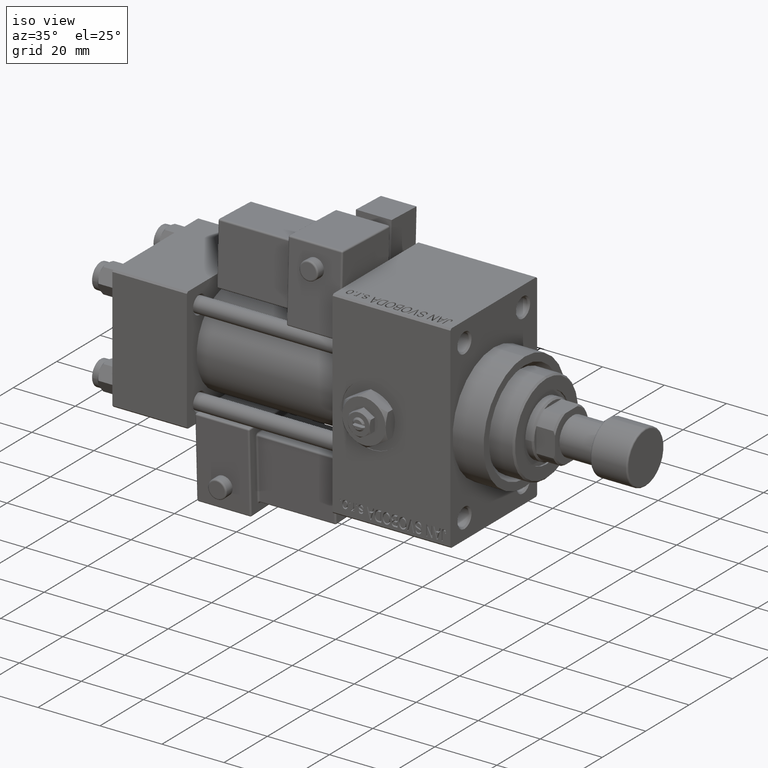
[diagram: clean part render]
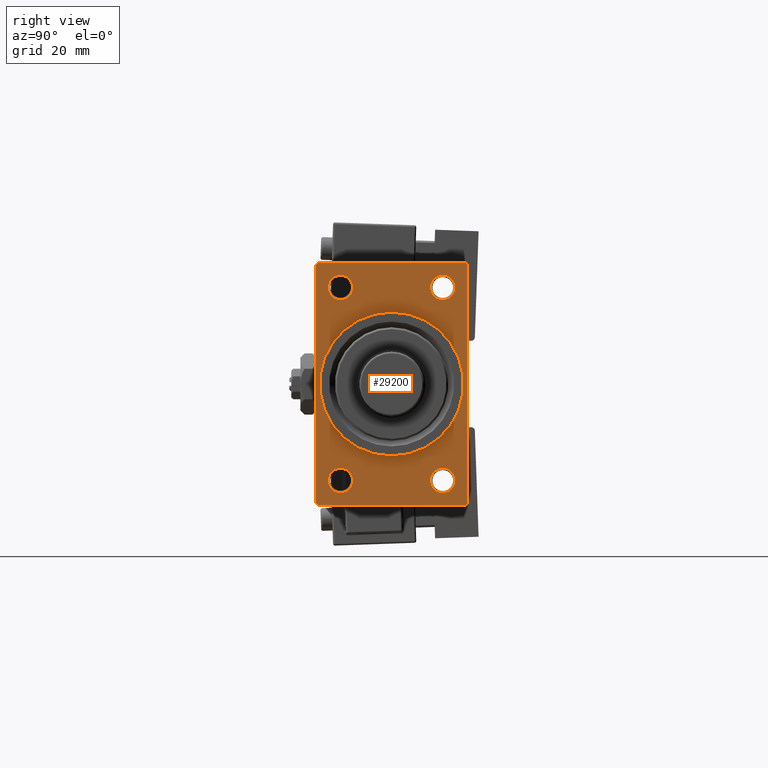
[diagram: tour spotlight — one face highlighted and labeled with its STEP entity id]
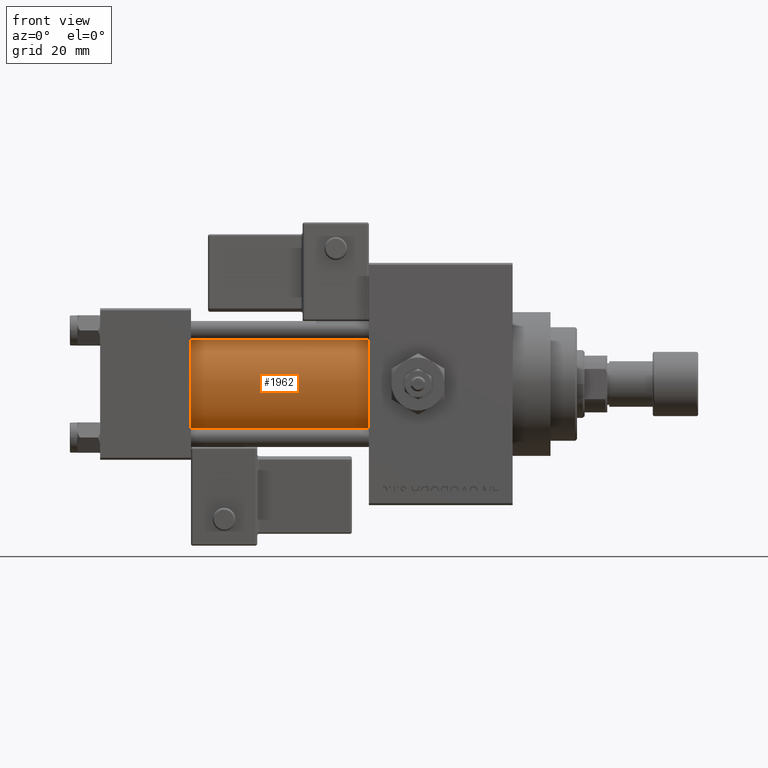
[diagram: tour spotlight — one face highlighted and labeled with its STEP entity id]
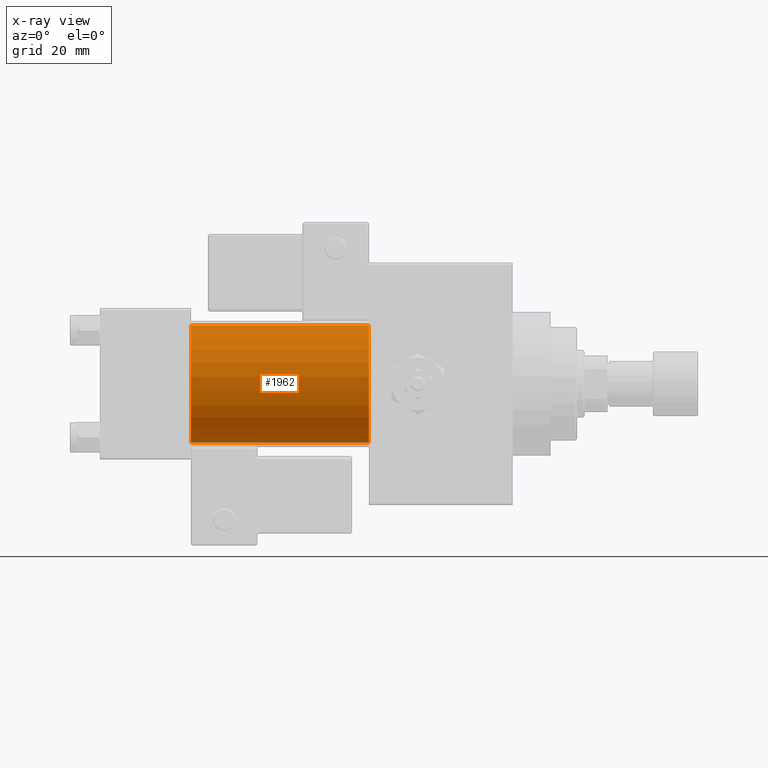
[diagram: x-ray of the same camera — body ghosted, this tour face saturated]
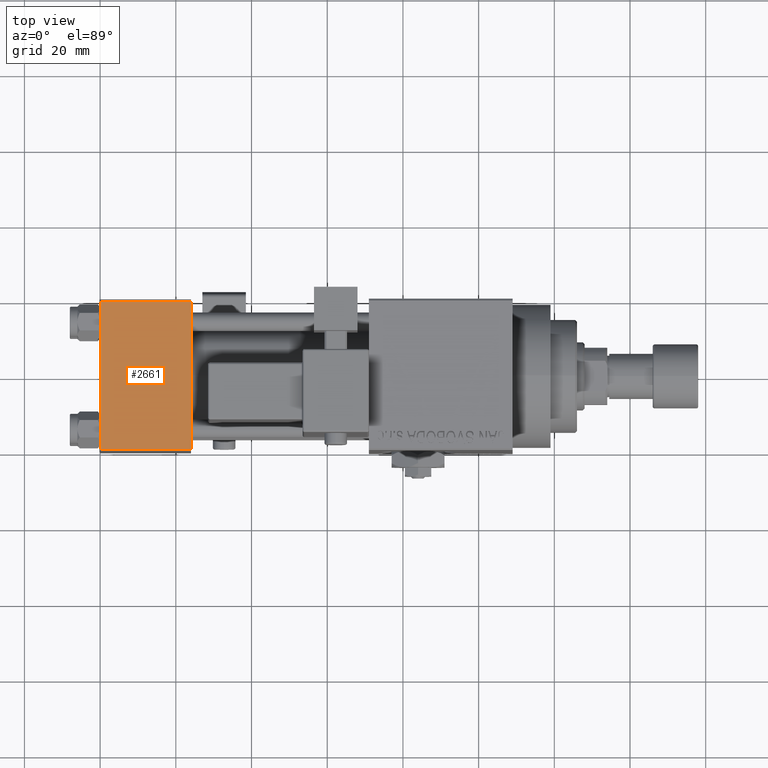
[diagram: tour spotlight — one face highlighted and labeled with its STEP entity id]
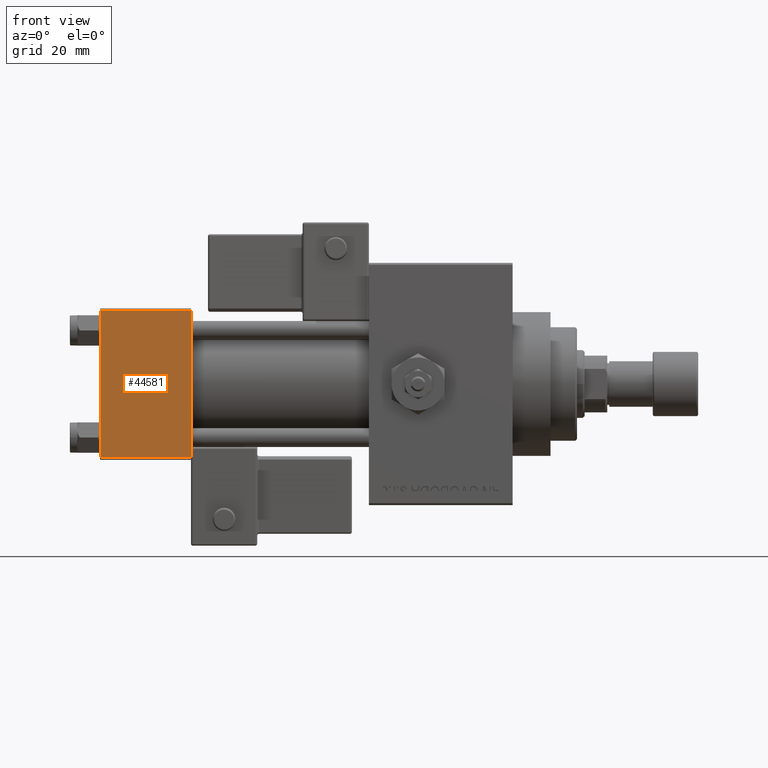
[diagram: tour spotlight — one face highlighted and labeled with its STEP entity id]
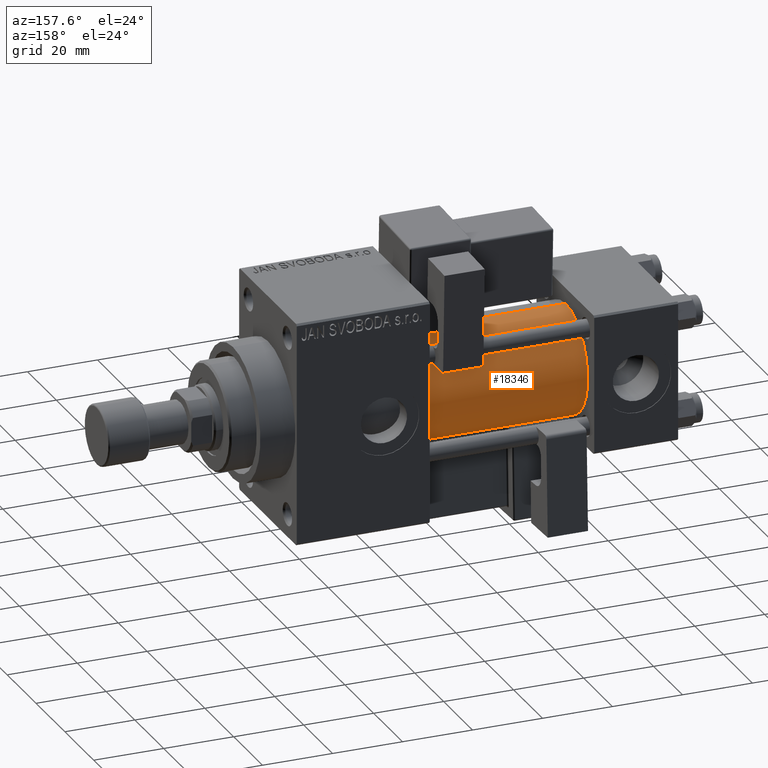
[diagram: tour spotlight — one face highlighted and labeled with its STEP entity id]
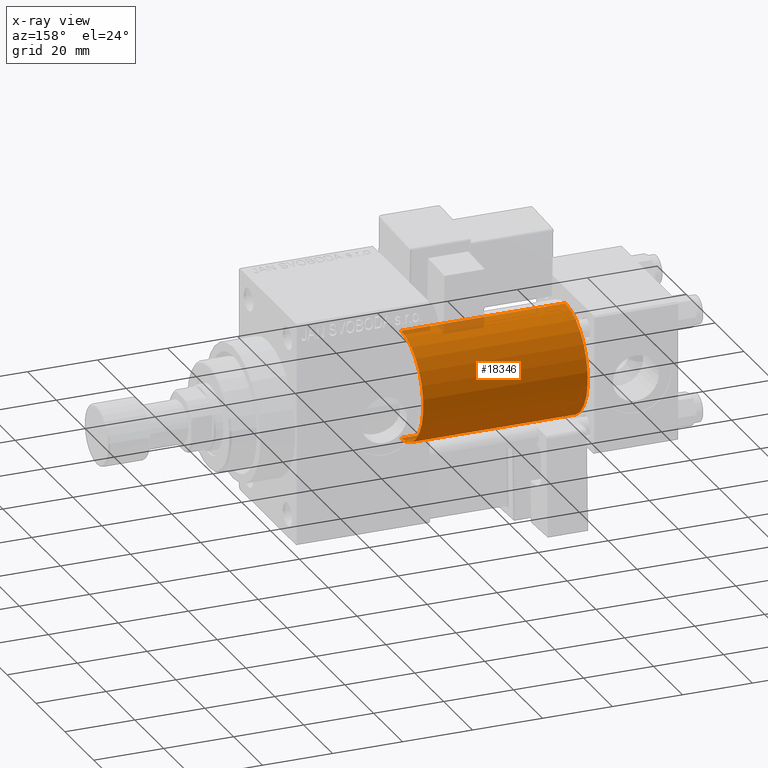
[diagram: x-ray of the same camera — body ghosted, this tour face saturated]
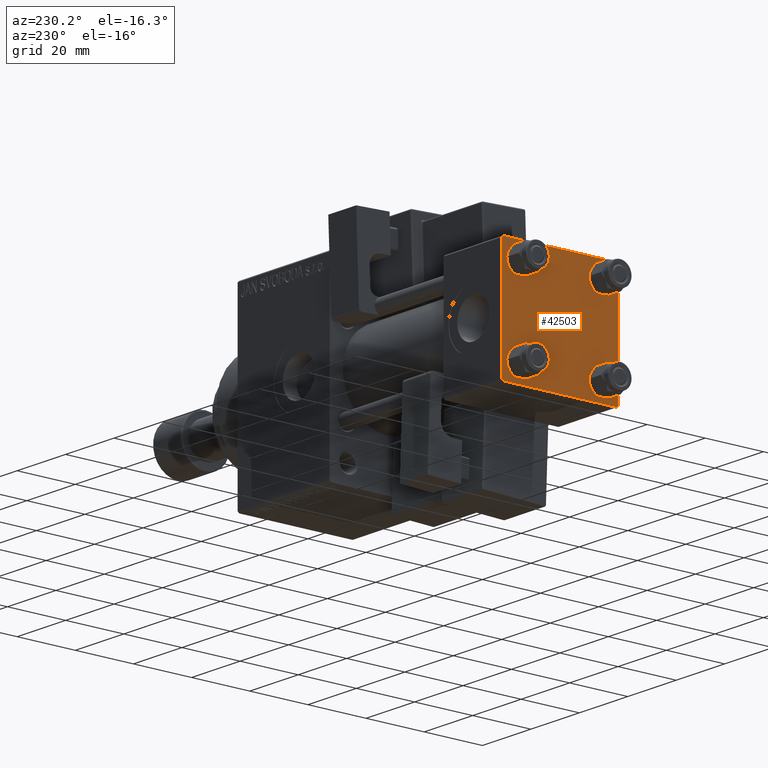
[diagram: tour spotlight — one face highlighted and labeled with its STEP entity id]
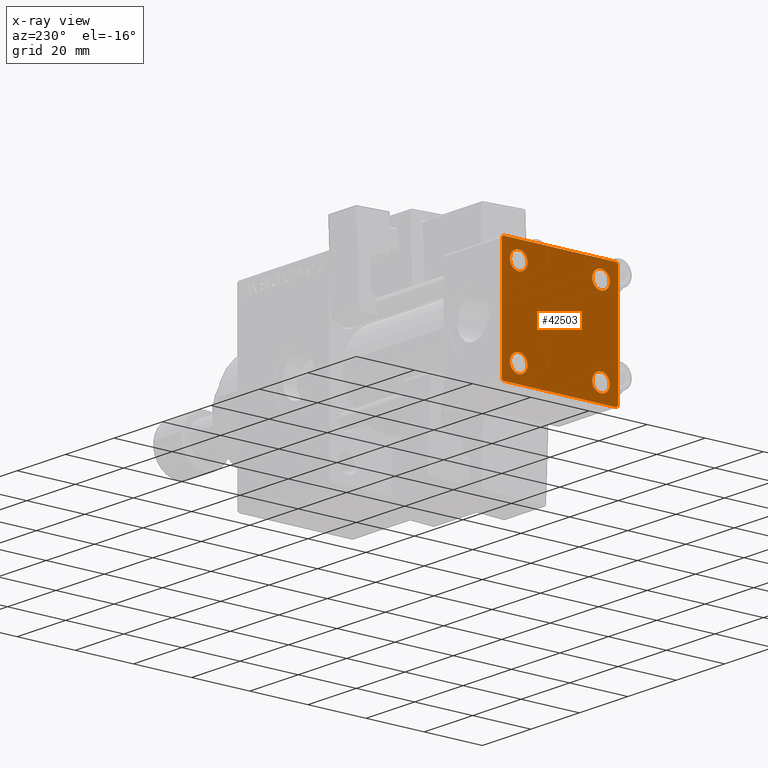
[diagram: x-ray of the same camera — body ghosted, this tour face saturated]
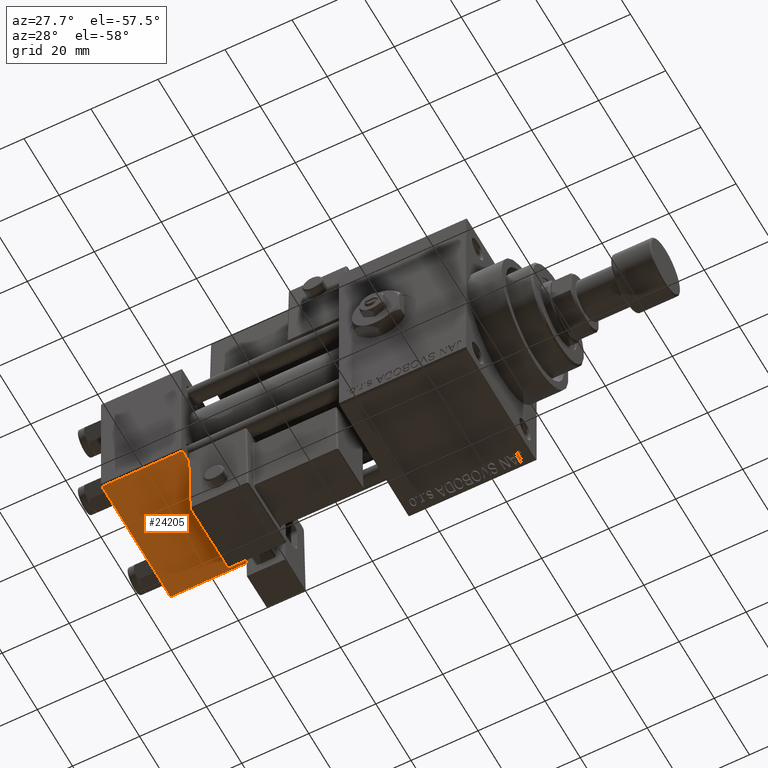
[diagram: tour spotlight — one face highlighted and labeled with its STEP entity id]
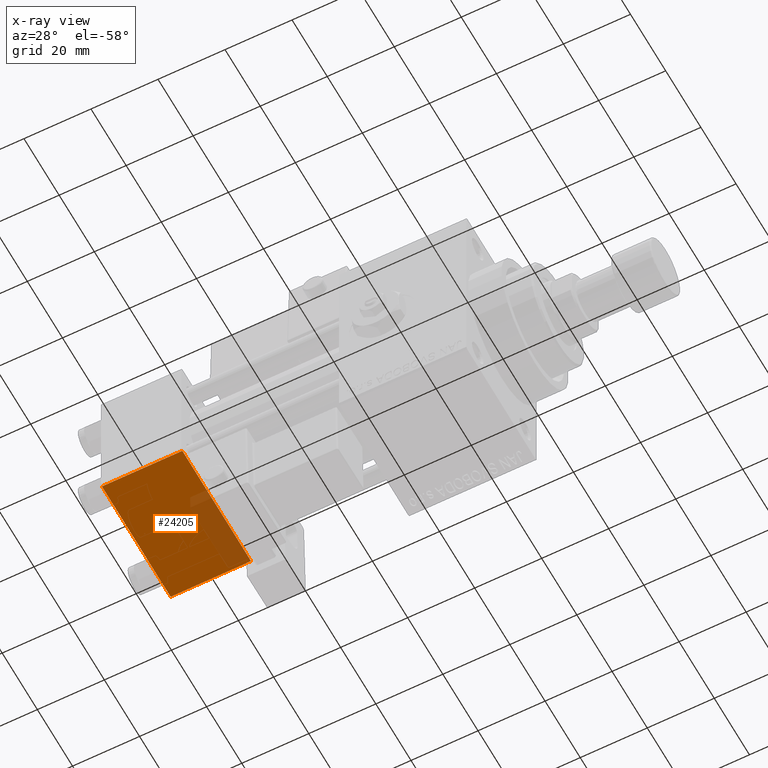
[diagram: x-ray of the same camera — body ghosted, this tour face saturated]
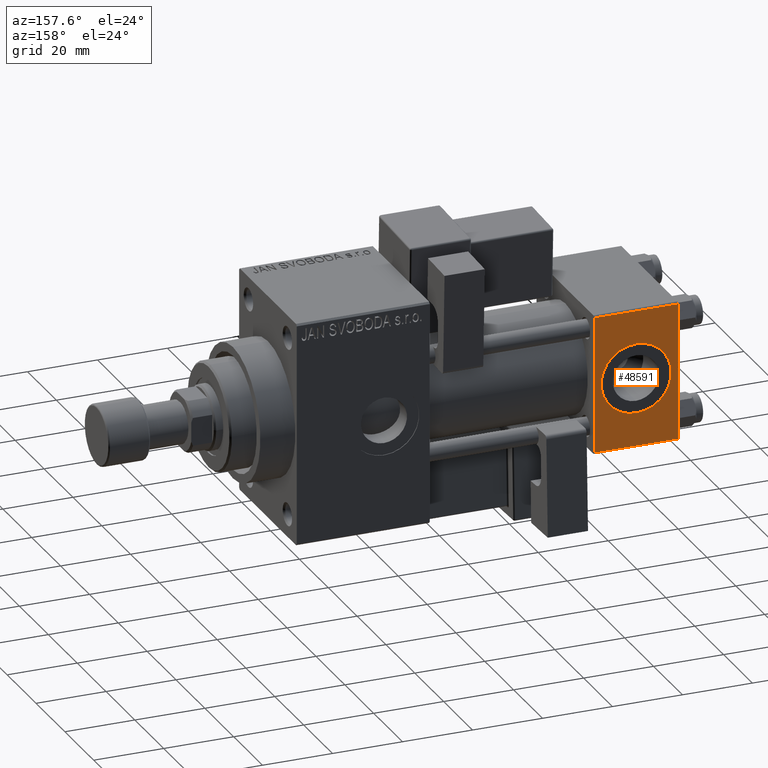
[diagram: tour spotlight — one face highlighted and labeled with its STEP entity id]
A machine part: a face-by-face anatomy tour. The part has 1321 B-rep faces; the first image is the clean iso view, then the 8 largest visible faces are spotlighted one at a time (largest first), each with its STEP entity span.

Face 1 — right view, entity #29200. In plain terms, the highlighted planar face has unit normal (-1, 0, 0).
Definition (entity closure, byte-faithful):
#488 = AXIS2_PLACEMENT_3D ( 'NONE', #33283, #12216, #29107 ) ;
#507 = CARTESIAN_POINT ( 'NONE',  ( 109.0000000000000142, 20.00000000000000000, -31.49999999999998579 ) ) ;
#1541 = CARTESIAN_POINT ( 'NONE',  ( 109.0000000000000142, -13.50000000000000533, -28.74999999999999645 ) ) ;
#2269 = CARTESIAN_POINT ( 'NONE',  ( 109.0000000000000142, 13.49999999999999822, -22.24999999999999645 ) ) ;
#2734 = VERTEX_POINT ( 'NONE', #35316 ) ;
#2962 = CARTESIAN_POINT ( 'NONE',  ( 109.0000000000000142, -19.49999999999998579, -32.00000000000000000 ) ) ;
#3020 = LINE ( 'NONE', #3275, #27060 ) ;
#3099 = CARTESIAN_POINT ( 'NONE',  ( 109.0000000000000142, 13.49999999999999822, 25.50000000000000355 ) ) ;
#3275 = CARTESIAN_POINT ( 'NONE',  ( 109.0000000000000142, 19.49999999999998579, 32.00000000000000000 ) ) ;
#3433 = VERTEX_POINT ( 'NONE', #42811 ) ;
#3513 = VERTEX_POINT ( 'NONE', #39654 ) ;
#3839 = AXIS2_PLACEMENT_3D ( 'NONE', #17788, #48774, #33668 ) ;
#3863 = EDGE_LOOP ( 'NONE', ( #49462, #15098 ) ) ;
#4605 = LINE ( 'NONE', #16320, #24214 ) ;
#4651 = CIRCLE ( 'NONE', #49540, 3.249999999999961364 ) ;
#4703 = CARTESIAN_POINT ( 'NONE',  ( 109.0000000000000142, -20.00000000000000000, 31.49999999999997868 ) ) ;
#5827 = EDGE_CURVE ( 'NONE', #48317, #15472, #7856, .T. ) ;
#6915 = DIRECTION ( 'NONE',  ( 1.000000000000000000, 0.000000000000000000, 0.000000000000000000 ) ) ;
#7503 = CARTESIAN_POINT ( 'NONE',  ( 109.0000000000000142, 20.00000000000000000, 32.00000000000000000 ) ) ;
#7856 = CIRCLE ( 'NONE', #36925, 3.250000000000002665 ) ;
#7922 = PLANE ( 'NONE',  #46087 ) ;
#8354 = DIRECTION ( 'NONE',  ( -0.000000000000000000, -0.7071067811865474617, -0.7071067811865474617 ) ) ;
#8701 = EDGE_CURVE ( 'NONE', #10807, #44010, #41213, .T. ) ;
#9239 = DIRECTION ( 'NONE',  ( 0.000000000000000000, 0.7071067811865426878, -0.7071067811865524577 ) ) ;
#9623 = CARTESIAN_POINT ( 'NONE',  ( 109.0000000000000142, 0.000000000000000000, 19.00000000000000000 ) ) ;
#9636 = VERTEX_POINT ( 'NONE', #507 ) ;
#10600 = DIRECTION ( 'NONE',  ( -1.000000000000000000, -0.000000000000000000, -0.000000000000000000 ) ) ;
#10726 = CARTESIAN_POINT ( 'NONE',  ( 109.0000000000000142, -13.50000000000000533, -22.24999999999999289 ) ) ;
#10780 = DIRECTION ( 'NONE',  ( -1.000000000000000000, -0.000000000000000000, -0.000000000000000000 ) ) ;
#10807 = VERTEX_POINT ( 'NONE', #10726 ) ;
#11138 = EDGE_CURVE ( 'NONE', #39530, #21258, #14741, .T. ) ;
#11431 = AXIS2_PLACEMENT_3D ( 'NONE', #35519, #6915, #34757 ) ;
#11766 = ORIENTED_EDGE ( 'NONE', *, *, #5827, .T. ) ;
#11941 = LINE ( 'NONE', #32741, #17497 ) ;
#12216 = DIRECTION ( 'NONE',  ( -1.000000000000000000, -0.000000000000000000, -0.000000000000000000 ) ) ;
#13093 = CARTESIAN_POINT ( 'NONE',  ( 109.0000000000000142, 20.00000000000000000, -32.00000000000000000 ) ) ;
#13793 = CIRCLE ( 'NONE', #3839, 3.250000000000002665 ) ;
#14318 = ORIENTED_EDGE ( 'NONE', *, *, #36378, .F. ) ;
#14741 = CIRCLE ( 'NONE', #11431, 19.00000000000000000 ) ;
#14976 = CARTESIAN_POINT ( 'NONE',  ( 109.0000000000000142, 0.000000000000000000, 0.000000000000000000 ) ) ;
#15098 = ORIENTED_EDGE ( 'NONE', *, *, #11138, .F. ) ;
#15291 = DIRECTION ( 'NONE',  ( 0.000000000000000000, 0.000000000000000000, -1.000000000000000000 ) ) ;
#15396 = DIRECTION ( 'NONE',  ( 0.000000000000000000, 0.000000000000000000, 1.000000000000000000 ) ) ;
#15472 = VERTEX_POINT ( 'NONE', #27112 ) ;
#15486 = FACE_BOUND ( 'NONE', #36143, .T. ) ;
#16200 = CARTESIAN_POINT ( 'NONE',  ( 109.0000000000000142, -19.49999999999998579, 31.99999999999999289 ) ) ;
#16279 = AXIS2_PLACEMENT_3D ( 'NONE', #3099, #49691, #49946 ) ;
#16320 = CARTESIAN_POINT ( 'NONE',  ( 109.0000000000000142, 20.00000000000000000, 32.00000000000000000 ) ) ;
#16525 = CARTESIAN_POINT ( 'NONE',  ( 109.0000000000000142, -19.49999999999998579, -32.00000000000000000 ) ) ;
#16782 = EDGE_CURVE ( 'NONE', #21687, #9636, #11941, .T. ) ;
#16885 = CARTESIAN_POINT ( 'NONE',  ( 109.0000000000000142, -20.00000000000000000, 31.99999999999999289 ) ) ;
#16985 = CARTESIAN_POINT ( 'NONE',  ( 109.0000000000000142, -13.50000000000000178, 28.75000000000000355 ) ) ;
#17230 = ORIENTED_EDGE ( 'NONE', *, *, #16782, .T. ) ;
#17497 = VECTOR ( 'NONE', #21038, 1000.000000000000114 ) ;
#17639 = CARTESIAN_POINT ( 'NONE',  ( 109.0000000000000142, -13.50000000000000533, -25.49999999999999645 ) ) ;
#17788 = CARTESIAN_POINT ( 'NONE',  ( 109.0000000000000142, 13.49999999999999822, -25.50000000000000000 ) ) ;
#17807 = CIRCLE ( 'NONE', #39427, 3.250000000000002665 ) ;
#18046 = ORIENTED_EDGE ( 'NONE', *, *, #22925, .T. ) ;
#18588 = EDGE_CURVE ( 'NONE', #41860, #46123, #4605, .T. ) ;
#19897 = FACE_BOUND ( 'NONE', #43522, .T. ) ;
#20312 = ORIENTED_EDGE ( 'NONE', *, *, #43260, .T. ) ;
#20426 = ORIENTED_EDGE ( 'NONE', *, *, #43823, .T. ) ;
#20558 = LINE ( 'NONE', #16885, #27964 ) ;
#21038 = DIRECTION ( 'NONE',  ( -0.000000000000000000, 0.7071067811865474617, 0.7071067811865474617 ) ) ;
#21258 = VERTEX_POINT ( 'NONE', #9623 ) ;
#21501 = CARTESIAN_POINT ( 'NONE',  ( 109.0000000000000142, 19.49999999999998579, 32.00000000000000000 ) ) ;
#21687 = VERTEX_POINT ( 'NONE', #30556 ) ;
#22326 = DIRECTION ( 'NONE',  ( 0.000000000000000000, 0.000000000000000000, 1.000000000000000000 ) ) ;
#22925 = EDGE_CURVE ( 'NONE', #15472, #48317, #45154, .T. ) ;
#23163 = CARTESIAN_POINT ( 'NONE',  ( 109.0000000000000142, 2.326828918379970970E-15, -19.00000000000000000 ) ) ;
#23201 = CARTESIAN_POINT ( 'NONE',  ( 109.0000000000000142, 20.00000000000000000, 31.49999999999998579 ) ) ;
#23953 = ORIENTED_EDGE ( 'NONE', *, *, #44108, .T. ) ;
#24095 = EDGE_CURVE ( 'NONE', #3513, #45054, #50090, .T. ) ;
#24214 = VECTOR ( 'NONE', #36609, 1000.000000000000000 ) ;
#24542 = EDGE_CURVE ( 'NONE', #21258, #39530, #49256, .T. ) ;
#25208 = AXIS2_PLACEMENT_3D ( 'NONE', #51047, #31528, #15396 ) ;
#25384 = VECTOR ( 'NONE', #15291, 1000.000000000000000 ) ;
#25447 = VERTEX_POINT ( 'NONE', #23201 ) ;
#26386 = DIRECTION ( 'NONE',  ( 0.000000000000000000, 0.000000000000000000, 1.000000000000000000 ) ) ;
#26422 = ORIENTED_EDGE ( 'NONE', *, *, #24095, .T. ) ;
#27060 = VECTOR ( 'NONE', #34767, 1000.000000000000114 ) ;
#27112 = CARTESIAN_POINT ( 'NONE',  ( 109.0000000000000142, -13.50000000000000178, 22.25000000000000000 ) ) ;
#27643 = VERTEX_POINT ( 'NONE', #2962 ) ;
#27964 = VECTOR ( 'NONE', #40324, 1000.000000000000000 ) ;
#29107 = DIRECTION ( 'NONE',  ( 0.000000000000000000, 0.000000000000000000, 1.000000000000000000 ) ) ;
#29200 = ADVANCED_FACE ( 'NONE', ( #15486, #51133, #39165, #19897, #35766, #38918 ), #7922, .F. ) ;
#30354 = CARTESIAN_POINT ( 'NONE',  ( 109.0000000000000142, -13.50000000000000178, 25.50000000000000355 ) ) ;
#30556 = CARTESIAN_POINT ( 'NONE',  ( 109.0000000000000142, 19.49999999999998579, -32.00000000000000000 ) ) ;
#30726 = DIRECTION ( 'NONE',  ( 0.000000000000000000, 0.000000000000000000, 1.000000000000000000 ) ) ;
#30742 = VERTEX_POINT ( 'NONE', #43274 ) ;
#30978 = CARTESIAN_POINT ( 'NONE',  ( 109.0000000000000142, 13.49999999999999822, 25.50000000000000355 ) ) ;
#31246 = DIRECTION ( 'NONE',  ( 1.000000000000000000, 0.000000000000000000, 0.000000000000000000 ) ) ;
#31356 = DIRECTION ( 'NONE',  ( -0.000000000000000000, 0.000000000000000000, 1.000000000000000000 ) ) ;
#31528 = DIRECTION ( 'NONE',  ( -1.000000000000000000, -0.000000000000000000, -0.000000000000000000 ) ) ;
#32031 = LINE ( 'NONE', #4703, #51331 ) ;
#32070 = EDGE_LOOP ( 'NONE', ( #43772, #45005 ) ) ;
#32102 = CIRCLE ( 'NONE', #16279, 3.249999999999961364 ) ;
#32207 = CARTESIAN_POINT ( 'NONE',  ( 109.0000000000000142, 0.000000000000000000, 0.000000000000000000 ) ) ;
#32457 = DIRECTION ( 'NONE',  ( 0.000000000000000000, 0.000000000000000000, -1.000000000000000000 ) ) ;
#32741 = CARTESIAN_POINT ( 'NONE',  ( 109.0000000000000142, 20.00000000000000000, -31.49999999999998579 ) ) ;
#33283 = CARTESIAN_POINT ( 'NONE',  ( 109.0000000000000142, -13.50000000000000533, -25.49999999999999645 ) ) ;
#33668 = DIRECTION ( 'NONE',  ( 0.000000000000000000, 0.000000000000000000, 1.000000000000000000 ) ) ;
#34757 = DIRECTION ( 'NONE',  ( 0.000000000000000000, 0.000000000000000000, -1.000000000000000000 ) ) ;
#34767 = DIRECTION ( 'NONE',  ( 0.000000000000000000, -0.7071067811865474617, 0.7071067811865474617 ) ) ;
#35316 = CARTESIAN_POINT ( 'NONE',  ( 109.0000000000000142, 13.49999999999999822, 22.25000000000004263 ) ) ;
#35466 = VECTOR ( 'NONE', #44321, 1000.000000000000000 ) ;
#35519 = CARTESIAN_POINT ( 'NONE',  ( 109.0000000000000142, 0.000000000000000000, 0.000000000000000000 ) ) ;
#35587 = LINE ( 'NONE', #7503, #25384 ) ;
#35766 = FACE_BOUND ( 'NONE', #3863, .T. ) ;
#35948 = EDGE_CURVE ( 'NONE', #46123, #51121, #32031, .T. ) ;
#36143 = EDGE_LOOP ( 'NONE', ( #18046, #11766 ) ) ;
#36287 = ORIENTED_EDGE ( 'NONE', *, *, #43438, .T. ) ;
#36378 = EDGE_CURVE ( 'NONE', #21687, #27643, #44071, .T. ) ;
#36577 = ORIENTED_EDGE ( 'NONE', *, *, #35948, .T. ) ;
#36609 = DIRECTION ( 'NONE',  ( 0.000000000000000000, -1.000000000000000000, -1.734723475976807094E-16 ) ) ;
#36925 = AXIS2_PLACEMENT_3D ( 'NONE', #30354, #10600, #42350 ) ;
#38765 = CARTESIAN_POINT ( 'NONE',  ( 109.0000000000000142, -20.00000000000000000, 31.49999999999997868 ) ) ;
#38843 = ORIENTED_EDGE ( 'NONE', *, *, #41686, .F. ) ;
#38918 = FACE_OUTER_BOUND ( 'NONE', #50753, .T. ) ;
#39165 = FACE_BOUND ( 'NONE', #43181, .T. ) ;
#39427 = AXIS2_PLACEMENT_3D ( 'NONE', #17639, #42112, #22326 ) ;
#39530 = VERTEX_POINT ( 'NONE', #23163 ) ;
#39654 = CARTESIAN_POINT ( 'NONE',  ( 109.0000000000000142, 13.49999999999999822, -28.75000000000000000 ) ) ;
#40103 = AXIS2_PLACEMENT_3D ( 'NONE', #32207, #31246, #32457 ) ;
#40324 = DIRECTION ( 'NONE',  ( 0.000000000000000000, 0.000000000000000000, -1.000000000000000000 ) ) ;
#40602 = EDGE_CURVE ( 'NONE', #44010, #10807, #17807, .T. ) ;
#40921 = AXIS2_PLACEMENT_3D ( 'NONE', #49826, #10780, #26386 ) ;
#41213 = CIRCLE ( 'NONE', #488, 3.250000000000002665 ) ;
#41686 = EDGE_CURVE ( 'NONE', #25447, #9636, #35587, .T. ) ;
#41860 = VERTEX_POINT ( 'NONE', #21501 ) ;
#42112 = DIRECTION ( 'NONE',  ( -1.000000000000000000, -0.000000000000000000, -0.000000000000000000 ) ) ;
#42350 = DIRECTION ( 'NONE',  ( 0.000000000000000000, 0.000000000000000000, 1.000000000000000000 ) ) ;
#42811 = CARTESIAN_POINT ( 'NONE',  ( 109.0000000000000142, -20.00000000000000000, -31.49999999999997868 ) ) ;
#43181 = EDGE_LOOP ( 'NONE', ( #26422, #36287 ) ) ;
#43260 = EDGE_CURVE ( 'NONE', #25447, #41860, #3020, .T. ) ;
#43274 = CARTESIAN_POINT ( 'NONE',  ( 109.0000000000000142, 13.49999999999999822, 28.74999999999996803 ) ) ;
#43438 = EDGE_CURVE ( 'NONE', #45054, #3513, #13793, .T. ) ;
#43522 = EDGE_LOOP ( 'NONE', ( #23953, #20426 ) ) ;
#43772 = ORIENTED_EDGE ( 'NONE', *, *, #40602, .T. ) ;
#43823 = EDGE_CURVE ( 'NONE', #30742, #2734, #4651, .T. ) ;
#44010 = VERTEX_POINT ( 'NONE', #1541 ) ;
#44071 = LINE ( 'NONE', #13093, #35466 ) ;
#44108 = EDGE_CURVE ( 'NONE', #2734, #30742, #32102, .T. ) ;
#44321 = DIRECTION ( 'NONE',  ( 0.000000000000000000, -1.000000000000000000, 0.000000000000000000 ) ) ;
#44356 = ORIENTED_EDGE ( 'NONE', *, *, #45170, .T. ) ;
#44887 = LINE ( 'NONE', #16525, #47934 ) ;
#45005 = ORIENTED_EDGE ( 'NONE', *, *, #8701, .T. ) ;
#45054 = VERTEX_POINT ( 'NONE', #2269 ) ;
#45154 = CIRCLE ( 'NONE', #25208, 3.250000000000002665 ) ;
#45170 = EDGE_CURVE ( 'NONE', #3433, #27643, #44887, .T. ) ;
#46079 = DIRECTION ( 'NONE',  ( -1.000000000000000000, -0.000000000000000000, -0.000000000000000000 ) ) ;
#46087 = AXIS2_PLACEMENT_3D ( 'NONE', #14976, #50879, #31356 ) ;
#46123 = VERTEX_POINT ( 'NONE', #16200 ) ;
#47934 = VECTOR ( 'NONE', #9239, 1000.000000000000000 ) ;
#48317 = VERTEX_POINT ( 'NONE', #16985 ) ;
#48430 = ORIENTED_EDGE ( 'NONE', *, *, #49059, .T. ) ;
#48774 = DIRECTION ( 'NONE',  ( -1.000000000000000000, -0.000000000000000000, -0.000000000000000000 ) ) ;
#49059 = EDGE_CURVE ( 'NONE', #51121, #3433, #20558, .T. ) ;
#49256 = CIRCLE ( 'NONE', #40103, 19.00000000000000000 ) ;
#49462 = ORIENTED_EDGE ( 'NONE', *, *, #24542, .F. ) ;
#49540 = AXIS2_PLACEMENT_3D ( 'NONE', #30978, #46079, #30726 ) ;
#49691 = DIRECTION ( 'NONE',  ( -1.000000000000000000, -0.000000000000000000, -0.000000000000000000 ) ) ;
#49826 = CARTESIAN_POINT ( 'NONE',  ( 109.0000000000000142, 13.49999999999999822, -25.50000000000000000 ) ) ;
#49946 = DIRECTION ( 'NONE',  ( 0.000000000000000000, 0.000000000000000000, 1.000000000000000000 ) ) ;
#50090 = CIRCLE ( 'NONE', #40921, 3.250000000000002665 ) ;
#50753 = EDGE_LOOP ( 'NONE', ( #48430, #44356, #14318, #17230, #38843, #20312, #51125, #36577 ) ) ;
#50879 = DIRECTION ( 'NONE',  ( -1.000000000000000000, 0.000000000000000000, -0.000000000000000000 ) ) ;
#51047 = CARTESIAN_POINT ( 'NONE',  ( 109.0000000000000142, -13.50000000000000178, 25.50000000000000355 ) ) ;
#51121 = VERTEX_POINT ( 'NONE', #38765 ) ;
#51125 = ORIENTED_EDGE ( 'NONE', *, *, #18588, .T. ) ;
#51133 = FACE_BOUND ( 'NONE', #32070, .T. ) ;
#51331 = VECTOR ( 'NONE', #8354, 1000.000000000000114 ) ;

Face 2 — front view, entity #1962. An x-ray twin of the same camera follows (body ghosted, this face saturated) — the face is partly hidden behind the body. In plain terms, the highlighted cylindrical surface (partial cylindrical patch) has radius 15.5 mm, axis along (-1, -0, -0).
Definition (entity closure, byte-faithful):
#1955 = LINE ( 'NONE', #17826, #27922 ) ;
#1962 = ADVANCED_FACE ( 'NONE', ( #5086 ), #25376, .T. ) ;
#5086 = FACE_OUTER_BOUND ( 'NONE', #45490, .T. ) ;
#5541 = CARTESIAN_POINT ( 'NONE',  ( 71.00000000000001421, -7.038826752868131828E-16, -15.50000000000000000 ) ) ;
#6218 = VERTEX_POINT ( 'NONE', #5541 ) ;
#6246 = EDGE_CURVE ( 'NONE', #9262, #6218, #14548, .T. ) ;
#6293 = CARTESIAN_POINT ( 'NONE',  ( 24.00000000000000000, -2.602085213965210642E-15, 15.50000000000000000 ) ) ;
#6667 = ORIENTED_EDGE ( 'NONE', *, *, #48009, .F. ) ;
#8637 = CIRCLE ( 'NONE', #29440, 15.50000000000000000 ) ;
#9251 = CARTESIAN_POINT ( 'NONE',  ( 71.00000000000001421, -2.602085213965210642E-15, 0.000000000000000000 ) ) ;
#9262 = VERTEX_POINT ( 'NONE', #27458 ) ;
#11035 = VECTOR ( 'NONE', #19041, 1000.000000000000000 ) ;
#14372 = DIRECTION ( 'NONE',  ( -1.000000000000000000, -0.000000000000000000, -0.000000000000000000 ) ) ;
#14548 = CIRCLE ( 'NONE', #24526, 15.50000000000000000 ) ;
#17793 = CARTESIAN_POINT ( 'NONE',  ( 24.00000000000000000, -2.602085213965210642E-15, 0.000000000000000000 ) ) ;
#17826 = CARTESIAN_POINT ( 'NONE',  ( 71.00000000000001421, -7.038826752868131828E-16, -15.50000000000000000 ) ) ;
#18035 = ORIENTED_EDGE ( 'NONE', *, *, #24492, .T. ) ;
#18148 = VERTEX_POINT ( 'NONE', #6293 ) ;
#19041 = DIRECTION ( 'NONE',  ( -1.000000000000000000, -0.000000000000000000, -0.000000000000000000 ) ) ;
#20091 = ORIENTED_EDGE ( 'NONE', *, *, #27709, .T. ) ;
#24492 = EDGE_CURVE ( 'NONE', #9262, #18148, #38046, .T. ) ;
#24526 = AXIS2_PLACEMENT_3D ( 'NONE', #40144, #49250, #48995 ) ;
#25376 = CYLINDRICAL_SURFACE ( 'NONE', #34426, 15.50000000000000000 ) ;
#25811 = CARTESIAN_POINT ( 'NONE',  ( 71.00000000000001421, -2.602085213965210642E-15, 15.50000000000000000 ) ) ;
#27458 = CARTESIAN_POINT ( 'NONE',  ( 71.00000000000001421, -2.602085213965210642E-15, 15.50000000000000000 ) ) ;
#27709 = EDGE_CURVE ( 'NONE', #18148, #30563, #8637, .T. ) ;
#27922 = VECTOR ( 'NONE', #30303, 1000.000000000000000 ) ;
#29267 = DIRECTION ( 'NONE',  ( 0.000000000000000000, 0.000000000000000000, 1.000000000000000000 ) ) ;
#29440 = AXIS2_PLACEMENT_3D ( 'NONE', #17793, #45639, #30537 ) ;
#29662 = ORIENTED_EDGE ( 'NONE', *, *, #6246, .F. ) ;
#30303 = DIRECTION ( 'NONE',  ( -1.000000000000000000, -0.000000000000000000, -0.000000000000000000 ) ) ;
#30537 = DIRECTION ( 'NONE',  ( 0.000000000000000000, 0.000000000000000000, 1.000000000000000000 ) ) ;
#30563 = VERTEX_POINT ( 'NONE', #44088 ) ;
#34426 = AXIS2_PLACEMENT_3D ( 'NONE', #9251, #14372, #29267 ) ;
#38046 = LINE ( 'NONE', #25811, #11035 ) ;
#40144 = CARTESIAN_POINT ( 'NONE',  ( 71.00000000000001421, -2.602085213965210642E-15, 0.000000000000000000 ) ) ;
#44088 = CARTESIAN_POINT ( 'NONE',  ( 24.00000000000000000, -7.038826752868131828E-16, -15.50000000000000000 ) ) ;
#45490 = EDGE_LOOP ( 'NONE', ( #6667, #29662, #18035, #20091 ) ) ;
#45639 = DIRECTION ( 'NONE',  ( 1.000000000000000000, 0.000000000000000000, 0.000000000000000000 ) ) ;
#48009 = EDGE_CURVE ( 'NONE', #6218, #30563, #1955, .T. ) ;
#48995 = DIRECTION ( 'NONE',  ( 0.000000000000000000, 0.000000000000000000, -1.000000000000000000 ) ) ;
#49250 = DIRECTION ( 'NONE',  ( 1.000000000000000000, 0.000000000000000000, 0.000000000000000000 ) ) ;

Face 3 — top view, entity #2661. In plain terms, the highlighted planar face has unit normal (0, 0, -1).
Definition (entity closure, byte-faithful):
#305 = VECTOR ( 'NONE', #45177, 1000.000000000000000 ) ;
#2051 = CARTESIAN_POINT ( 'NONE',  ( 24.00000000000000000, 20.00000000000000000, 20.00000000000000000 ) ) ;
#2661 = ADVANCED_FACE ( 'NONE', ( #15028 ), #38967, .F. ) ;
#3563 = DIRECTION ( 'NONE',  ( 0.000000000000000000, 1.000000000000000000, 2.602085213965210149E-16 ) ) ;
#5965 = DIRECTION ( 'NONE',  ( 0.000000000000000000, -1.000000000000000000, -2.602085213965210149E-16 ) ) ;
#6586 = CARTESIAN_POINT ( 'NONE',  ( 0.000000000000000000, 19.50000000000000000, 20.00000000000000000 ) ) ;
#7075 = DIRECTION ( 'NONE',  ( 1.000000000000000000, 0.000000000000000000, 0.000000000000000000 ) ) ;
#11121 = DIRECTION ( 'NONE',  ( 0.000000000000000000, 2.602085213965210149E-16, -1.000000000000000000 ) ) ;
#11209 = CARTESIAN_POINT ( 'NONE',  ( 0.000000000000000000, 19.50000000000000000, 20.00000000000000000 ) ) ;
#12203 = CARTESIAN_POINT ( 'NONE',  ( 0.000000000000000000, -19.49999999999999289, 19.99999999999998934 ) ) ;
#12921 = CARTESIAN_POINT ( 'NONE',  ( 0.000000000000000000, 20.00000000000000000, 20.00000000000000000 ) ) ;
#13492 = ORIENTED_EDGE ( 'NONE', *, *, #44015, .F. ) ;
#15028 = FACE_OUTER_BOUND ( 'NONE', #17229, .T. ) ;
#17229 = EDGE_LOOP ( 'NONE', ( #34751, #42061, #13492, #17590 ) ) ;
#17411 = LINE ( 'NONE', #2051, #50404 ) ;
#17590 = ORIENTED_EDGE ( 'NONE', *, *, #35667, .T. ) ;
#18675 = CARTESIAN_POINT ( 'NONE',  ( 24.00000000000000000, 20.00000000000000000, 20.00000000000000000 ) ) ;
#19323 = VECTOR ( 'NONE', #7075, 1000.000000000000000 ) ;
#20920 = EDGE_CURVE ( 'NONE', #39527, #28370, #23192, .T. ) ;
#21375 = CARTESIAN_POINT ( 'NONE',  ( 24.00000000000000000, 19.50000000000000000, 20.00000000000000000 ) ) ;
#22295 = CARTESIAN_POINT ( 'NONE',  ( 24.00000000000000000, -19.49999999999999289, 19.99999999999998934 ) ) ;
#23192 = LINE ( 'NONE', #39070, #19323 ) ;
#23328 = VERTEX_POINT ( 'NONE', #11209 ) ;
#27314 = EDGE_CURVE ( 'NONE', #23328, #39527, #29301, .T. ) ;
#28370 = VERTEX_POINT ( 'NONE', #22295 ) ;
#29301 = LINE ( 'NONE', #12921, #305 ) ;
#29985 = DIRECTION ( 'NONE',  ( -1.000000000000000000, 0.000000000000000000, 0.000000000000000000 ) ) ;
#34751 = ORIENTED_EDGE ( 'NONE', *, *, #27314, .T. ) ;
#35667 = EDGE_CURVE ( 'NONE', #40981, #23328, #41456, .T. ) ;
#37213 = VECTOR ( 'NONE', #29985, 1000.000000000000000 ) ;
#37805 = AXIS2_PLACEMENT_3D ( 'NONE', #18675, #11121, #3563 ) ;
#38967 = PLANE ( 'NONE',  #37805 ) ;
#39070 = CARTESIAN_POINT ( 'NONE',  ( 24.00000000000000000, -19.49999999999999289, 19.99999999999998934 ) ) ;
#39527 = VERTEX_POINT ( 'NONE', #12203 ) ;
#40981 = VERTEX_POINT ( 'NONE', #21375 ) ;
#41456 = LINE ( 'NONE', #6586, #37213 ) ;
#42061 = ORIENTED_EDGE ( 'NONE', *, *, #20920, .T. ) ;
#44015 = EDGE_CURVE ( 'NONE', #40981, #28370, #17411, .T. ) ;
#45177 = DIRECTION ( 'NONE',  ( 0.000000000000000000, -1.000000000000000000, -2.602085213965210149E-16 ) ) ;
#50404 = VECTOR ( 'NONE', #5965, 1000.000000000000000 ) ;

Face 4 — front view, entity #44581. In plain terms, the highlighted planar face has unit normal (0, 1, 0).
Definition (entity closure, byte-faithful):
#347 = VECTOR ( 'NONE', #14670, 1000.000000000000000 ) ;
#586 = VERTEX_POINT ( 'NONE', #34082 ) ;
#6235 = CARTESIAN_POINT ( 'NONE',  ( 0.000000000000000000, -20.00000000000000000, -19.49999999999999645 ) ) ;
#8072 = LINE ( 'NONE', #15875, #36656 ) ;
#8081 = FACE_OUTER_BOUND ( 'NONE', #49703, .T. ) ;
#13855 = VERTEX_POINT ( 'NONE', #6235 ) ;
#14670 = DIRECTION ( 'NONE',  ( 1.000000000000000000, 0.000000000000000000, 0.000000000000000000 ) ) ;
#15875 = CARTESIAN_POINT ( 'NONE',  ( 0.000000000000000000, -20.00000000000000355, 19.99999999999998934 ) ) ;
#16050 = LINE ( 'NONE', #20485, #35005 ) ;
#16628 = CARTESIAN_POINT ( 'NONE',  ( 0.000000000000000000, -20.00000000000000355, 19.49999999999998224 ) ) ;
#17681 = EDGE_CURVE ( 'NONE', #586, #42422, #16050, .T. ) ;
#18299 = EDGE_CURVE ( 'NONE', #42422, #13855, #8072, .T. ) ;
#18501 = DIRECTION ( 'NONE',  ( 0.000000000000000000, 8.673617379884036705E-17, -1.000000000000000000 ) ) ;
#19978 = DIRECTION ( 'NONE',  ( -1.000000000000000000, 0.000000000000000000, 0.000000000000000000 ) ) ;
#20302 = DIRECTION ( 'NONE',  ( -0.000000000000000000, 1.000000000000000000, 8.673617379884036705E-17 ) ) ;
#20485 = CARTESIAN_POINT ( 'NONE',  ( 24.00000000000000000, -20.00000000000000355, 19.49999999999998224 ) ) ;
#21549 = VERTEX_POINT ( 'NONE', #33173 ) ;
#25501 = AXIS2_PLACEMENT_3D ( 'NONE', #47381, #20302, #28099 ) ;
#27662 = EDGE_CURVE ( 'NONE', #13855, #21549, #46664, .T. ) ;
#27939 = VECTOR ( 'NONE', #18501, 1000.000000000000000 ) ;
#28099 = DIRECTION ( 'NONE',  ( 0.000000000000000000, -8.673617379884036705E-17, 1.000000000000000000 ) ) ;
#29398 = ORIENTED_EDGE ( 'NONE', *, *, #27662, .T. ) ;
#31752 = PLANE ( 'NONE',  #25501 ) ;
#32001 = DIRECTION ( 'NONE',  ( 0.000000000000000000, 8.673617379884036705E-17, -1.000000000000000000 ) ) ;
#32202 = EDGE_CURVE ( 'NONE', #586, #21549, #35403, .T. ) ;
#33173 = CARTESIAN_POINT ( 'NONE',  ( 24.00000000000000000, -20.00000000000000000, -19.49999999999999645 ) ) ;
#33673 = CARTESIAN_POINT ( 'NONE',  ( 24.00000000000000000, -20.00000000000000000, -19.49999999999999645 ) ) ;
#34082 = CARTESIAN_POINT ( 'NONE',  ( 24.00000000000000000, -20.00000000000000355, 19.49999999999998224 ) ) ;
#35005 = VECTOR ( 'NONE', #19978, 1000.000000000000000 ) ;
#35403 = LINE ( 'NONE', #42455, #27939 ) ;
#36656 = VECTOR ( 'NONE', #32001, 1000.000000000000000 ) ;
#41571 = ORIENTED_EDGE ( 'NONE', *, *, #32202, .F. ) ;
#42422 = VERTEX_POINT ( 'NONE', #16628 ) ;
#42455 = CARTESIAN_POINT ( 'NONE',  ( 24.00000000000000000, -20.00000000000000355, 19.99999999999998934 ) ) ;
#44581 = ADVANCED_FACE ( 'NONE', ( #8081 ), #31752, .F. ) ;
#44804 = ORIENTED_EDGE ( 'NONE', *, *, #17681, .T. ) ;
#46664 = LINE ( 'NONE', #33673, #347 ) ;
#47381 = CARTESIAN_POINT ( 'NONE',  ( 24.00000000000000000, -20.00000000000000355, 19.99999999999998934 ) ) ;
#49703 = EDGE_LOOP ( 'NONE', ( #50648, #29398, #41571, #44804 ) ) ;
#50648 = ORIENTED_EDGE ( 'NONE', *, *, #18299, .T. ) ;

Face 5 — auxiliary view, entity #18346. An x-ray twin of the same camera follows (body ghosted, this face saturated) — the face is partly hidden behind the body. In plain terms, the highlighted cylindrical surface (partial cylindrical patch) has radius 15.5 mm, axis along (-1, -0, -0).
Definition (entity closure, byte-faithful):
#75 = DIRECTION ( 'NONE',  ( 0.000000000000000000, 0.000000000000000000, -1.000000000000000000 ) ) ;
#92 = AXIS2_PLACEMENT_3D ( 'NONE', #25993, #10382, #21056 ) ;
#1955 = LINE ( 'NONE', #17826, #27922 ) ;
#5541 = CARTESIAN_POINT ( 'NONE',  ( 71.00000000000001421, -7.038826752868131828E-16, -15.50000000000000000 ) ) ;
#6138 = EDGE_CURVE ( 'NONE', #6218, #9262, #44477, .T. ) ;
#6218 = VERTEX_POINT ( 'NONE', #5541 ) ;
#6293 = CARTESIAN_POINT ( 'NONE',  ( 24.00000000000000000, -2.602085213965210642E-15, 15.50000000000000000 ) ) ;
#7408 = DIRECTION ( 'NONE',  ( 1.000000000000000000, 0.000000000000000000, 0.000000000000000000 ) ) ;
#9262 = VERTEX_POINT ( 'NONE', #27458 ) ;
#10382 = DIRECTION ( 'NONE',  ( -1.000000000000000000, -0.000000000000000000, -0.000000000000000000 ) ) ;
#11035 = VECTOR ( 'NONE', #19041, 1000.000000000000000 ) ;
#11555 = CARTESIAN_POINT ( 'NONE',  ( 71.00000000000001421, -2.602085213965210642E-15, 0.000000000000000000 ) ) ;
#12369 = CARTESIAN_POINT ( 'NONE',  ( 24.00000000000000000, -2.602085213965210642E-15, 0.000000000000000000 ) ) ;
#17040 = DIRECTION ( 'NONE',  ( 1.000000000000000000, 0.000000000000000000, 0.000000000000000000 ) ) ;
#17826 = CARTESIAN_POINT ( 'NONE',  ( 71.00000000000001421, -7.038826752868131828E-16, -15.50000000000000000 ) ) ;
#18075 = CIRCLE ( 'NONE', #31366, 15.50000000000000000 ) ;
#18148 = VERTEX_POINT ( 'NONE', #6293 ) ;
#18346 = ADVANCED_FACE ( 'NONE', ( #49160 ), #29113, .T. ) ;
#19041 = DIRECTION ( 'NONE',  ( -1.000000000000000000, -0.000000000000000000, -0.000000000000000000 ) ) ;
#21035 = ORIENTED_EDGE ( 'NONE', *, *, #48009, .T. ) ;
#21056 = DIRECTION ( 'NONE',  ( 0.000000000000000000, 0.000000000000000000, 1.000000000000000000 ) ) ;
#24492 = EDGE_CURVE ( 'NONE', #9262, #18148, #38046, .T. ) ;
#25811 = CARTESIAN_POINT ( 'NONE',  ( 71.00000000000001421, -2.602085213965210642E-15, 15.50000000000000000 ) ) ;
#25993 = CARTESIAN_POINT ( 'NONE',  ( 71.00000000000001421, -2.602085213965210642E-15, 0.000000000000000000 ) ) ;
#27458 = CARTESIAN_POINT ( 'NONE',  ( 71.00000000000001421, -2.602085213965210642E-15, 15.50000000000000000 ) ) ;
#27922 = VECTOR ( 'NONE', #30303, 1000.000000000000000 ) ;
#29113 = CYLINDRICAL_SURFACE ( 'NONE', #92, 15.50000000000000000 ) ;
#30303 = DIRECTION ( 'NONE',  ( -1.000000000000000000, -0.000000000000000000, -0.000000000000000000 ) ) ;
#30563 = VERTEX_POINT ( 'NONE', #44088 ) ;
#31366 = AXIS2_PLACEMENT_3D ( 'NONE', #12369, #17040, #40979 ) ;
#32851 = AXIS2_PLACEMENT_3D ( 'NONE', #11555, #7408, #75 ) ;
#38046 = LINE ( 'NONE', #25811, #11035 ) ;
#39838 = ORIENTED_EDGE ( 'NONE', *, *, #6138, .F. ) ;
#40979 = DIRECTION ( 'NONE',  ( 0.000000000000000000, 0.000000000000000000, 1.000000000000000000 ) ) ;
#43325 = EDGE_LOOP ( 'NONE', ( #39838, #21035, #44449, #47349 ) ) ;
#44088 = CARTESIAN_POINT ( 'NONE',  ( 24.00000000000000000, -7.038826752868131828E-16, -15.50000000000000000 ) ) ;
#44449 = ORIENTED_EDGE ( 'NONE', *, *, #50445, .T. ) ;
#44477 = CIRCLE ( 'NONE', #32851, 15.50000000000000000 ) ;
#47349 = ORIENTED_EDGE ( 'NONE', *, *, #24492, .F. ) ;
#48009 = EDGE_CURVE ( 'NONE', #6218, #30563, #1955, .T. ) ;
#49160 = FACE_OUTER_BOUND ( 'NONE', #43325, .T. ) ;
#50445 = EDGE_CURVE ( 'NONE', #30563, #18148, #18075, .T. ) ;

Face 6 — auxiliary view, entity #42503. An x-ray twin of the same camera follows (body ghosted, this face saturated) — the face is partly hidden behind the body. In plain terms, the highlighted planar face has unit normal (-1, 0, 0).
Definition (entity closure, byte-faithful):
#204 = DIRECTION ( 'NONE',  ( 0.000000000000000000, 0.000000000000000000, 1.000000000000000000 ) ) ;
#305 = VECTOR ( 'NONE', #45177, 1000.000000000000000 ) ;
#1013 = CARTESIAN_POINT ( 'NONE',  ( 0.000000000000000000, 14.14999999999999858, -14.15000000000000036 ) ) ;
#1845 = CARTESIAN_POINT ( 'NONE',  ( 0.000000000000000000, -19.50000000000000711, -20.00000000000000000 ) ) ;
#2107 = VECTOR ( 'NONE', #31591, 1000.000000000000000 ) ;
#2147 = DIRECTION ( 'NONE',  ( 0.000000000000000000, 0.7071067811865425767, -0.7071067811865525687 ) ) ;
#2425 = DIRECTION ( 'NONE',  ( 0.000000000000000000, 0.000000000000000000, 1.000000000000000000 ) ) ;
#2499 = EDGE_CURVE ( 'NONE', #41518, #28978, #26176, .T. ) ;
#3203 = EDGE_CURVE ( 'NONE', #39327, #13855, #16349, .T. ) ;
#3578 = DIRECTION ( 'NONE',  ( 1.000000000000000000, 0.000000000000000000, 0.000000000000000000 ) ) ;
#3767 = EDGE_CURVE ( 'NONE', #32782, #24202, #16209, .T. ) ;
#5314 = CARTESIAN_POINT ( 'NONE',  ( 0.000000000000000000, 20.00000000000000000, 19.49999999999999289 ) ) ;
#5755 = DIRECTION ( 'NONE',  ( 0.000000000000000000, -1.000000000000000000, 1.734723475976807094E-16 ) ) ;
#5865 = CARTESIAN_POINT ( 'NONE',  ( 0.000000000000000000, 20.00000000000000000, -19.50000000000002132 ) ) ;
#5957 = FACE_BOUND ( 'NONE', #6966, .T. ) ;
#6235 = CARTESIAN_POINT ( 'NONE',  ( 0.000000000000000000, -20.00000000000000000, -19.49999999999999645 ) ) ;
#6789 = EDGE_CURVE ( 'NONE', #35169, #47512, #46958, .T. ) ;
#6966 = EDGE_LOOP ( 'NONE', ( #51309, #35770 ) ) ;
#7101 = CARTESIAN_POINT ( 'NONE',  ( 0.000000000000000000, 14.14999999999999858, 14.15000000000000036 ) ) ;
#7361 = DIRECTION ( 'NONE',  ( 1.000000000000000000, 0.000000000000000000, 0.000000000000000000 ) ) ;
#8072 = LINE ( 'NONE', #15875, #36656 ) ;
#8714 = CARTESIAN_POINT ( 'NONE',  ( 0.000000000000000000, -14.14999999999999503, -17.15000000000000924 ) ) ;
#9061 = DIRECTION ( 'NONE',  ( 0.000000000000000000, -0.7071067811865401342, 0.7071067811865549002 ) ) ;
#9109 = CIRCLE ( 'NONE', #9931, 3.000000000000004441 ) ;
#9110 = ORIENTED_EDGE ( 'NONE', *, *, #33262, .T. ) ;
#9875 = CARTESIAN_POINT ( 'NONE',  ( 0.000000000000000000, 14.14999999999999858, -17.14999999999998437 ) ) ;
#9931 = AXIS2_PLACEMENT_3D ( 'NONE', #29850, #14765, #18933 ) ;
#10116 = CARTESIAN_POINT ( 'NONE',  ( -0.000000000000000000, -19.74999999999992539, 19.75000000000006395 ) ) ;
#10270 = VERTEX_POINT ( 'NONE', #8714 ) ;
#10747 = ORIENTED_EDGE ( 'NONE', *, *, #36719, .T. ) ;
#10890 = DIRECTION ( 'NONE',  ( -0.000000000000000000, 0.7071067811865500152, 0.7071067811865451302 ) ) ;
#11209 = CARTESIAN_POINT ( 'NONE',  ( 0.000000000000000000, 19.50000000000000000, 20.00000000000000000 ) ) ;
#12203 = CARTESIAN_POINT ( 'NONE',  ( 0.000000000000000000, -19.49999999999999289, 19.99999999999998934 ) ) ;
#12921 = CARTESIAN_POINT ( 'NONE',  ( 0.000000000000000000, 20.00000000000000000, 20.00000000000000000 ) ) ;
#13855 = VERTEX_POINT ( 'NONE', #6235 ) ;
#14531 = DIRECTION ( 'NONE',  ( -1.000000000000000000, 0.000000000000000000, -0.000000000000000000 ) ) ;
#14571 = EDGE_CURVE ( 'NONE', #10270, #27580, #9109, .T. ) ;
#14765 = DIRECTION ( 'NONE',  ( 1.000000000000000000, 0.000000000000000000, 0.000000000000000000 ) ) ;
#15264 = AXIS2_PLACEMENT_3D ( 'NONE', #16045, #3578, #19454 ) ;
#15810 = DIRECTION ( 'NONE',  ( 0.000000000000000000, 0.000000000000000000, 1.000000000000000000 ) ) ;
#15875 = CARTESIAN_POINT ( 'NONE',  ( 0.000000000000000000, -20.00000000000000355, 19.99999999999998934 ) ) ;
#16045 = CARTESIAN_POINT ( 'NONE',  ( 0.000000000000000000, -14.14999999999999503, -14.15000000000000391 ) ) ;
#16209 = CIRCLE ( 'NONE', #41146, 2.999999999999983569 ) ;
#16349 = LINE ( 'NONE', #44961, #28645 ) ;
#16628 = CARTESIAN_POINT ( 'NONE',  ( 0.000000000000000000, -20.00000000000000355, 19.49999999999998224 ) ) ;
#17476 = ORIENTED_EDGE ( 'NONE', *, *, #29927, .T. ) ;
#17701 = EDGE_CURVE ( 'NONE', #24202, #32782, #50800, .T. ) ;
#18234 = LINE ( 'NONE', #37234, #45455 ) ;
#18299 = EDGE_CURVE ( 'NONE', #42422, #13855, #8072, .T. ) ;
#18543 = VECTOR ( 'NONE', #2147, 999.9999999999998863 ) ;
#18571 = CIRCLE ( 'NONE', #15264, 3.000000000000004441 ) ;
#18933 = DIRECTION ( 'NONE',  ( 0.000000000000000000, 0.000000000000000000, 1.000000000000000000 ) ) ;
#19454 = DIRECTION ( 'NONE',  ( 0.000000000000000000, 0.000000000000000000, 1.000000000000000000 ) ) ;
#19594 = AXIS2_PLACEMENT_3D ( 'NONE', #37434, #14531, #21569 ) ;
#20067 = AXIS2_PLACEMENT_3D ( 'NONE', #23870, #32193, #15810 ) ;
#21437 = ORIENTED_EDGE ( 'NONE', *, *, #18299, .F. ) ;
#21569 = DIRECTION ( 'NONE',  ( -0.000000000000000000, 0.000000000000000000, 1.000000000000000000 ) ) ;
#21647 = CARTESIAN_POINT ( 'NONE',  ( 0.000000000000000000, 14.14999999999999858, -14.15000000000000036 ) ) ;
#21820 = FACE_BOUND ( 'NONE', #27051, .T. ) ;
#21826 = DIRECTION ( 'NONE',  ( 1.000000000000000000, 0.000000000000000000, 0.000000000000000000 ) ) ;
#21848 = EDGE_CURVE ( 'NONE', #23328, #44200, #45595, .T. ) ;
#23328 = VERTEX_POINT ( 'NONE', #11209 ) ;
#23870 = CARTESIAN_POINT ( 'NONE',  ( 0.000000000000000000, 14.14999999999999858, 14.15000000000000036 ) ) ;
#23907 = CARTESIAN_POINT ( 'NONE',  ( 0.000000000000000000, -14.14999999999999503, 14.15000000000000391 ) ) ;
#24202 = VERTEX_POINT ( 'NONE', #31568 ) ;
#26176 = CIRCLE ( 'NONE', #46122, 2.999999999999983569 ) ;
#26235 = CARTESIAN_POINT ( 'NONE',  ( 0.000000000000000000, -14.14999999999999503, 11.15000000000002345 ) ) ;
#26349 = EDGE_CURVE ( 'NONE', #27580, #10270, #18571, .T. ) ;
#26612 = ORIENTED_EDGE ( 'NONE', *, *, #45534, .T. ) ;
#27051 = EDGE_LOOP ( 'NONE', ( #29490, #34427 ) ) ;
#27314 = EDGE_CURVE ( 'NONE', #23328, #39527, #29301, .T. ) ;
#27580 = VERTEX_POINT ( 'NONE', #48267 ) ;
#27917 = CARTESIAN_POINT ( 'NONE',  ( -0.000000000000000000, 19.74999999999986855, -19.75000000000014211 ) ) ;
#28645 = VECTOR ( 'NONE', #9061, 1000.000000000000000 ) ;
#28824 = DIRECTION ( 'NONE',  ( 1.000000000000000000, 0.000000000000000000, 0.000000000000000000 ) ) ;
#28880 = ORIENTED_EDGE ( 'NONE', *, *, #27314, .F. ) ;
#28978 = VERTEX_POINT ( 'NONE', #32178 ) ;
#28985 = ORIENTED_EDGE ( 'NONE', *, *, #3203, .T. ) ;
#29301 = LINE ( 'NONE', #12921, #305 ) ;
#29490 = ORIENTED_EDGE ( 'NONE', *, *, #26349, .T. ) ;
#29661 = EDGE_LOOP ( 'NONE', ( #9110, #45110 ) ) ;
#29850 = CARTESIAN_POINT ( 'NONE',  ( 0.000000000000000000, -14.14999999999999503, -14.15000000000000391 ) ) ;
#29927 = EDGE_CURVE ( 'NONE', #42422, #39527, #45751, .T. ) ;
#30422 = DIRECTION ( 'NONE',  ( 0.000000000000000000, 0.000000000000000000, -1.000000000000000000 ) ) ;
#30840 = ORIENTED_EDGE ( 'NONE', *, *, #21848, .T. ) ;
#31568 = CARTESIAN_POINT ( 'NONE',  ( 0.000000000000000000, 14.14999999999999858, 17.14999999999998437 ) ) ;
#31591 = DIRECTION ( 'NONE',  ( -0.000000000000000000, -0.7071067811865524577, -0.7071067811865426878 ) ) ;
#31646 = CARTESIAN_POINT ( 'NONE',  ( 0.000000000000000000, 14.14999999999999858, -11.15000000000001812 ) ) ;
#32001 = DIRECTION ( 'NONE',  ( 0.000000000000000000, 8.673617379884036705E-17, -1.000000000000000000 ) ) ;
#32154 = CIRCLE ( 'NONE', #48760, 2.999999999999983569 ) ;
#32178 = CARTESIAN_POINT ( 'NONE',  ( 0.000000000000000000, -14.14999999999999503, 17.14999999999998792 ) ) ;
#32193 = DIRECTION ( 'NONE',  ( 1.000000000000000000, 0.000000000000000000, 0.000000000000000000 ) ) ;
#32296 = EDGE_LOOP ( 'NONE', ( #26612, #50228, #10747, #28985, #21437, #17476, #28880, #30840 ) ) ;
#32542 = EDGE_CURVE ( 'NONE', #49202, #34771, #47064, .T. ) ;
#32782 = VERTEX_POINT ( 'NONE', #36034 ) ;
#33102 = DIRECTION ( 'NONE',  ( 1.000000000000000000, 0.000000000000000000, 0.000000000000000000 ) ) ;
#33262 = EDGE_CURVE ( 'NONE', #34771, #49202, #36323, .T. ) ;
#34427 = ORIENTED_EDGE ( 'NONE', *, *, #14571, .T. ) ;
#34771 = VERTEX_POINT ( 'NONE', #31646 ) ;
#35169 = VERTEX_POINT ( 'NONE', #5865 ) ;
#35264 = ORIENTED_EDGE ( 'NONE', *, *, #17701, .T. ) ;
#35332 = VECTOR ( 'NONE', #10890, 1000.000000000000114 ) ;
#35619 = CARTESIAN_POINT ( 'NONE',  ( 0.000000000000000000, 19.50000000000000711, -20.00000000000000711 ) ) ;
#35770 = ORIENTED_EDGE ( 'NONE', *, *, #2499, .T. ) ;
#36034 = CARTESIAN_POINT ( 'NONE',  ( 0.000000000000000000, 14.14999999999999858, 11.15000000000001990 ) ) ;
#36130 = EDGE_CURVE ( 'NONE', #28978, #41518, #32154, .T. ) ;
#36134 = DIRECTION ( 'NONE',  ( 1.000000000000000000, 0.000000000000000000, 0.000000000000000000 ) ) ;
#36323 = CIRCLE ( 'NONE', #51257, 2.999999999999983569 ) ;
#36656 = VECTOR ( 'NONE', #32001, 1000.000000000000000 ) ;
#36719 = EDGE_CURVE ( 'NONE', #47512, #39327, #18234, .T. ) ;
#37234 = CARTESIAN_POINT ( 'NONE',  ( 0.000000000000000000, 20.00000000000000000, -20.00000000000000711 ) ) ;
#37434 = CARTESIAN_POINT ( 'NONE',  ( 0.000000000000000000, 0.000000000000000000, 0.000000000000000000 ) ) ;
#37688 = FACE_BOUND ( 'NONE', #39397, .T. ) ;
#39013 = LINE ( 'NONE', #47073, #48793 ) ;
#39327 = VERTEX_POINT ( 'NONE', #1845 ) ;
#39397 = EDGE_LOOP ( 'NONE', ( #35264, #50284 ) ) ;
#39527 = VERTEX_POINT ( 'NONE', #12203 ) ;
#40028 = DIRECTION ( 'NONE',  ( 0.000000000000000000, 0.000000000000000000, 1.000000000000000000 ) ) ;
#40829 = DIRECTION ( 'NONE',  ( 0.000000000000000000, 0.000000000000000000, 1.000000000000000000 ) ) ;
#41146 = AXIS2_PLACEMENT_3D ( 'NONE', #7101, #7361, #2425 ) ;
#41178 = CARTESIAN_POINT ( 'NONE',  ( -0.000000000000000000, 19.75000000000013500, 19.74999999999986144 ) ) ;
#41518 = VERTEX_POINT ( 'NONE', #26235 ) ;
#42422 = VERTEX_POINT ( 'NONE', #16628 ) ;
#42503 = ADVANCED_FACE ( 'NONE', ( #5957, #21820, #50190, #37688, #45753 ), #49683, .T. ) ;
#44187 = CARTESIAN_POINT ( 'NONE',  ( 0.000000000000000000, -14.14999999999999503, 14.15000000000000391 ) ) ;
#44200 = VERTEX_POINT ( 'NONE', #5314 ) ;
#44961 = CARTESIAN_POINT ( 'NONE',  ( 0.000000000000000000, -19.75000000000020961, -19.74999999999979394 ) ) ;
#45110 = ORIENTED_EDGE ( 'NONE', *, *, #32542, .T. ) ;
#45177 = DIRECTION ( 'NONE',  ( 0.000000000000000000, -1.000000000000000000, -2.602085213965210149E-16 ) ) ;
#45455 = VECTOR ( 'NONE', #5755, 1000.000000000000000 ) ;
#45534 = EDGE_CURVE ( 'NONE', #44200, #35169, #39013, .T. ) ;
#45595 = LINE ( 'NONE', #41178, #18543 ) ;
#45751 = LINE ( 'NONE', #10116, #35332 ) ;
#45753 = FACE_OUTER_BOUND ( 'NONE', #32296, .T. ) ;
#45835 = DIRECTION ( 'NONE',  ( 0.000000000000000000, 0.000000000000000000, 1.000000000000000000 ) ) ;
#46122 = AXIS2_PLACEMENT_3D ( 'NONE', #44187, #28824, #204 ) ;
#46958 = LINE ( 'NONE', #27917, #2107 ) ;
#47064 = CIRCLE ( 'NONE', #51221, 2.999999999999983569 ) ;
#47073 = CARTESIAN_POINT ( 'NONE',  ( 0.000000000000000000, 20.00000000000000000, 20.00000000000000000 ) ) ;
#47512 = VERTEX_POINT ( 'NONE', #35619 ) ;
#48267 = CARTESIAN_POINT ( 'NONE',  ( 0.000000000000000000, -14.14999999999999503, -11.15000000000000036 ) ) ;
#48760 = AXIS2_PLACEMENT_3D ( 'NONE', #23907, #36134, #40028 ) ;
#48793 = VECTOR ( 'NONE', #30422, 1000.000000000000000 ) ;
#49202 = VERTEX_POINT ( 'NONE', #9875 ) ;
#49683 = PLANE ( 'NONE',  #19594 ) ;
#50190 = FACE_BOUND ( 'NONE', #29661, .T. ) ;
#50228 = ORIENTED_EDGE ( 'NONE', *, *, #6789, .T. ) ;
#50284 = ORIENTED_EDGE ( 'NONE', *, *, #3767, .T. ) ;
#50800 = CIRCLE ( 'NONE', #20067, 2.999999999999983569 ) ;
#51221 = AXIS2_PLACEMENT_3D ( 'NONE', #1013, #21826, #40829 ) ;
#51257 = AXIS2_PLACEMENT_3D ( 'NONE', #21647, #33102, #45835 ) ;
#51309 = ORIENTED_EDGE ( 'NONE', *, *, #36130, .T. ) ;

Face 7 — auxiliary view, entity #24205. An x-ray twin of the same camera follows (body ghosted, this face saturated) — the face is partly hidden behind the body. In plain terms, the highlighted planar face has unit normal (0, -0, -1).
Definition (entity closure, byte-faithful):
#1845 = CARTESIAN_POINT ( 'NONE',  ( 0.000000000000000000, -19.50000000000000711, -20.00000000000000000 ) ) ;
#3178 = DIRECTION ( 'NONE',  ( 1.000000000000000000, 0.000000000000000000, 0.000000000000000000 ) ) ;
#4224 = DIRECTION ( 'NONE',  ( 0.000000000000000000, 1.000000000000000000, -1.734723475976806848E-16 ) ) ;
#5717 = EDGE_LOOP ( 'NONE', ( #40270, #42912, #35102, #41070 ) ) ;
#5755 = DIRECTION ( 'NONE',  ( 0.000000000000000000, -1.000000000000000000, 1.734723475976807094E-16 ) ) ;
#7082 = LINE ( 'NONE', #22942, #48474 ) ;
#7770 = LINE ( 'NONE', #23894, #11881 ) ;
#7979 = CARTESIAN_POINT ( 'NONE',  ( 24.00000000000000000, 19.50000000000000711, -20.00000000000000711 ) ) ;
#11489 = CARTESIAN_POINT ( 'NONE',  ( 24.00000000000000000, -19.50000000000000711, -20.00000000000000000 ) ) ;
#11881 = VECTOR ( 'NONE', #28547, 1000.000000000000000 ) ;
#15831 = VERTEX_POINT ( 'NONE', #7979 ) ;
#16807 = AXIS2_PLACEMENT_3D ( 'NONE', #47435, #43285, #4224 ) ;
#18234 = LINE ( 'NONE', #37234, #45455 ) ;
#18574 = EDGE_CURVE ( 'NONE', #21945, #39327, #23879, .T. ) ;
#19984 = CARTESIAN_POINT ( 'NONE',  ( 0.000000000000000000, -19.50000000000000711, -20.00000000000000000 ) ) ;
#21945 = VERTEX_POINT ( 'NONE', #11489 ) ;
#22405 = EDGE_CURVE ( 'NONE', #15831, #21945, #7770, .T. ) ;
#22942 = CARTESIAN_POINT ( 'NONE',  ( 24.00000000000000000, 19.50000000000000711, -20.00000000000000711 ) ) ;
#23879 = LINE ( 'NONE', #19984, #39971 ) ;
#23894 = CARTESIAN_POINT ( 'NONE',  ( 24.00000000000000000, 20.00000000000000000, -20.00000000000000711 ) ) ;
#24007 = FACE_OUTER_BOUND ( 'NONE', #5717, .T. ) ;
#24205 = ADVANCED_FACE ( 'NONE', ( #24007 ), #39877, .T. ) ;
#25497 = EDGE_CURVE ( 'NONE', #47512, #15831, #7082, .T. ) ;
#28547 = DIRECTION ( 'NONE',  ( 0.000000000000000000, -1.000000000000000000, 1.734723475976807094E-16 ) ) ;
#35102 = ORIENTED_EDGE ( 'NONE', *, *, #22405, .T. ) ;
#35600 = DIRECTION ( 'NONE',  ( -1.000000000000000000, 0.000000000000000000, 0.000000000000000000 ) ) ;
#35619 = CARTESIAN_POINT ( 'NONE',  ( 0.000000000000000000, 19.50000000000000711, -20.00000000000000711 ) ) ;
#36719 = EDGE_CURVE ( 'NONE', #47512, #39327, #18234, .T. ) ;
#37234 = CARTESIAN_POINT ( 'NONE',  ( 0.000000000000000000, 20.00000000000000000, -20.00000000000000711 ) ) ;
#39327 = VERTEX_POINT ( 'NONE', #1845 ) ;
#39877 = PLANE ( 'NONE',  #16807 ) ;
#39971 = VECTOR ( 'NONE', #35600, 1000.000000000000000 ) ;
#40270 = ORIENTED_EDGE ( 'NONE', *, *, #36719, .F. ) ;
#41070 = ORIENTED_EDGE ( 'NONE', *, *, #18574, .T. ) ;
#42912 = ORIENTED_EDGE ( 'NONE', *, *, #25497, .T. ) ;
#43285 = DIRECTION ( 'NONE',  ( 0.000000000000000000, -1.734723475976806848E-16, -1.000000000000000000 ) ) ;
#45455 = VECTOR ( 'NONE', #5755, 1000.000000000000000 ) ;
#47435 = CARTESIAN_POINT ( 'NONE',  ( 24.00000000000000000, 20.00000000000000000, -20.00000000000000711 ) ) ;
#47512 = VERTEX_POINT ( 'NONE', #35619 ) ;
#48474 = VECTOR ( 'NONE', #3178, 1000.000000000000000 ) ;

Face 8 — auxiliary view, entity #48591. In plain terms, the highlighted planar face has unit normal (0, 1, 0).
Definition (entity closure, byte-faithful):
#123 = CARTESIAN_POINT ( 'NONE',  ( 24.00000000000000000, 20.00000000000000000, -19.50000000000002132 ) ) ;
#1636 = CIRCLE ( 'NONE', #36507, 10.00000000000000000 ) ;
#4612 = VECTOR ( 'NONE', #29341, 1000.000000000000000 ) ;
#5314 = CARTESIAN_POINT ( 'NONE',  ( 0.000000000000000000, 20.00000000000000000, 19.49999999999999289 ) ) ;
#5865 = CARTESIAN_POINT ( 'NONE',  ( 0.000000000000000000, 20.00000000000000000, -19.50000000000002132 ) ) ;
#6181 = CARTESIAN_POINT ( 'NONE',  ( 24.00000000000000000, 20.00000000000000000, 20.00000000000000000 ) ) ;
#6930 = FACE_OUTER_BOUND ( 'NONE', #21011, .T. ) ;
#7722 = EDGE_CURVE ( 'NONE', #44200, #50453, #50365, .T. ) ;
#9832 = ORIENTED_EDGE ( 'NONE', *, *, #13381, .F. ) ;
#11565 = CIRCLE ( 'NONE', #23993, 10.00000000000000000 ) ;
#12199 = VERTEX_POINT ( 'NONE', #12595 ) ;
#12595 = CARTESIAN_POINT ( 'NONE',  ( 12.00000000000000178, 20.00000000000000000, -10.00000000000000000 ) ) ;
#13381 = EDGE_CURVE ( 'NONE', #12199, #14370, #1636, .T. ) ;
#14370 = VERTEX_POINT ( 'NONE', #47077 ) ;
#14735 = ORIENTED_EDGE ( 'NONE', *, *, #7722, .T. ) ;
#16309 = AXIS2_PLACEMENT_3D ( 'NONE', #26445, #27209, #42329 ) ;
#16331 = EDGE_CURVE ( 'NONE', #28422, #35169, #17769, .T. ) ;
#16610 = CARTESIAN_POINT ( 'NONE',  ( 12.00000000000000000, 20.00000000000000000, 0.000000000000000000 ) ) ;
#17769 = LINE ( 'NONE', #33651, #36585 ) ;
#18634 = PLANE ( 'NONE',  #16309 ) ;
#19131 = CARTESIAN_POINT ( 'NONE',  ( 24.00000000000000000, 20.00000000000000000, 19.49999999999999289 ) ) ;
#20104 = CARTESIAN_POINT ( 'NONE',  ( 12.00000000000000000, 20.00000000000000000, 0.000000000000000000 ) ) ;
#21011 = EDGE_LOOP ( 'NONE', ( #48814, #23008, #25079, #14735 ) ) ;
#23008 = ORIENTED_EDGE ( 'NONE', *, *, #16331, .T. ) ;
#23993 = AXIS2_PLACEMENT_3D ( 'NONE', #16610, #28562, #44712 ) ;
#24003 = DIRECTION ( 'NONE',  ( 0.000000000000000000, 1.000000000000000000, 0.000000000000000000 ) ) ;
#25079 = ORIENTED_EDGE ( 'NONE', *, *, #45534, .F. ) ;
#25429 = DIRECTION ( 'NONE',  ( 0.000000000000000000, 0.000000000000000000, -1.000000000000000000 ) ) ;
#26445 = CARTESIAN_POINT ( 'NONE',  ( 24.00000000000000000, 20.00000000000000000, 20.00000000000000000 ) ) ;
#27209 = DIRECTION ( 'NONE',  ( -0.000000000000000000, 1.000000000000000000, 0.000000000000000000 ) ) ;
#28422 = VERTEX_POINT ( 'NONE', #123 ) ;
#28562 = DIRECTION ( 'NONE',  ( 0.000000000000000000, 1.000000000000000000, 0.000000000000000000 ) ) ;
#29341 = DIRECTION ( 'NONE',  ( 1.000000000000000000, 0.000000000000000000, 0.000000000000000000 ) ) ;
#30422 = DIRECTION ( 'NONE',  ( 0.000000000000000000, 0.000000000000000000, -1.000000000000000000 ) ) ;
#31968 = ORIENTED_EDGE ( 'NONE', *, *, #38679, .F. ) ;
#33495 = LINE ( 'NONE', #6181, #34696 ) ;
#33651 = CARTESIAN_POINT ( 'NONE',  ( 24.00000000000000000, 20.00000000000000000, -19.50000000000002132 ) ) ;
#34509 = EDGE_CURVE ( 'NONE', #50453, #28422, #33495, .T. ) ;
#34696 = VECTOR ( 'NONE', #25429, 1000.000000000000000 ) ;
#35169 = VERTEX_POINT ( 'NONE', #5865 ) ;
#35963 = FACE_BOUND ( 'NONE', #37712, .T. ) ;
#36507 = AXIS2_PLACEMENT_3D ( 'NONE', #20104, #24003, #39873 ) ;
#36585 = VECTOR ( 'NONE', #49530, 1000.000000000000000 ) ;
#37712 = EDGE_LOOP ( 'NONE', ( #31968, #9832 ) ) ;
#38679 = EDGE_CURVE ( 'NONE', #14370, #12199, #11565, .T. ) ;
#39013 = LINE ( 'NONE', #47073, #48793 ) ;
#39873 = DIRECTION ( 'NONE',  ( 0.000000000000000000, 0.000000000000000000, 1.000000000000000000 ) ) ;
#42329 = DIRECTION ( 'NONE',  ( 0.000000000000000000, -0.000000000000000000, 1.000000000000000000 ) ) ;
#44200 = VERTEX_POINT ( 'NONE', #5314 ) ;
#44712 = DIRECTION ( 'NONE',  ( 0.000000000000000000, 0.000000000000000000, 1.000000000000000000 ) ) ;
#45534 = EDGE_CURVE ( 'NONE', #44200, #35169, #39013, .T. ) ;
#47073 = CARTESIAN_POINT ( 'NONE',  ( 0.000000000000000000, 20.00000000000000000, 20.00000000000000000 ) ) ;
#47077 = CARTESIAN_POINT ( 'NONE',  ( 12.00000000000000000, 20.00000000000000000, 10.00000000000000000 ) ) ;
#48286 = CARTESIAN_POINT ( 'NONE',  ( 24.00000000000000000, 20.00000000000000000, 19.49999999999999289 ) ) ;
#48591 = ADVANCED_FACE ( 'NONE', ( #35963, #6930 ), #18634, .T. ) ;
#48793 = VECTOR ( 'NONE', #30422, 1000.000000000000000 ) ;
#48814 = ORIENTED_EDGE ( 'NONE', *, *, #34509, .T. ) ;
#49530 = DIRECTION ( 'NONE',  ( -1.000000000000000000, 0.000000000000000000, 0.000000000000000000 ) ) ;
#50365 = LINE ( 'NONE', #19131, #4612 ) ;
#50453 = VERTEX_POINT ( 'NONE', #48286 ) ;